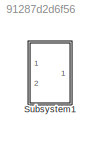
MODEL slx_91287d2d6f56
KIND model
CONFIG AbsTol = auto
CONFIG EnableMultiTasking = off
CONFIG FixedStep = auto
CONFIG MaxStep = auto
CONFIG MinStep = auto
CONFIG RelTol = 1e-3
CONFIG SampleTimeConstraint = Unconstrained
CONFIG Solver = VariableStepAuto
CONFIG SolverName = VariableStepAuto
CONFIG StartTime = 0.0
CONFIG StopTime = 10.0
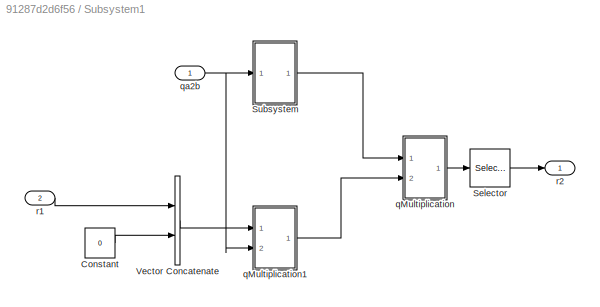
BLOCK [SubSystem] Subsystem1
  Ports = [2, 1]
  RequestExecContextInheritance = off
BLOCK [Constant] Subsystem1/Constant
  Value = 0
BLOCK [Selector] Subsystem1/Selector
  IndexOptions = Index vector (dialog)
  Indices = [1:3]
  InputPortWidth = 4
  OutputSizes = 1
  Ports = [1, 1]
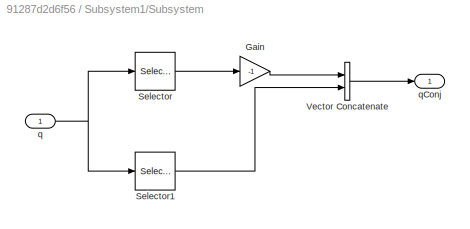
BLOCK [SubSystem] Subsystem1/Subsystem
  Ports = [1, 1]
  RequestExecContextInheritance = off
BLOCK [Gain] Subsystem1/Subsystem/Gain
  Gain = -1
  OutDataTypeStr = Inherit: Inherit via internal rule
  ParamDataTypeStr = Inherit: Inherit via internal rule
  SaturateOnIntegerOverflow = off
BLOCK [Selector] Subsystem1/Subsystem/Selector
  IndexOptions = Index vector (dialog)
  Indices = [1:3]
  InputPortWidth = 4
  OutputSizes = 1
  Ports = [1, 1]
BLOCK [Selector] Subsystem1/Subsystem/Selector1
  IndexOptions = Index vector (dialog)
  Indices = 4
  InputPortWidth = 4
  OutputSizes = 1
  Ports = [1, 1]
BLOCK [Concatenate] Subsystem1/Subsystem/Vector Concatenate
  Ports = [2, 1]
BLOCK [Inport] Subsystem1/Subsystem/q
  IconDisplay = Port number
BLOCK [Outport] Subsystem1/Subsystem/qConj
  IconDisplay = Port number
BLOCK [Concatenate] Subsystem1/Vector Concatenate
  Ports = [2, 1]
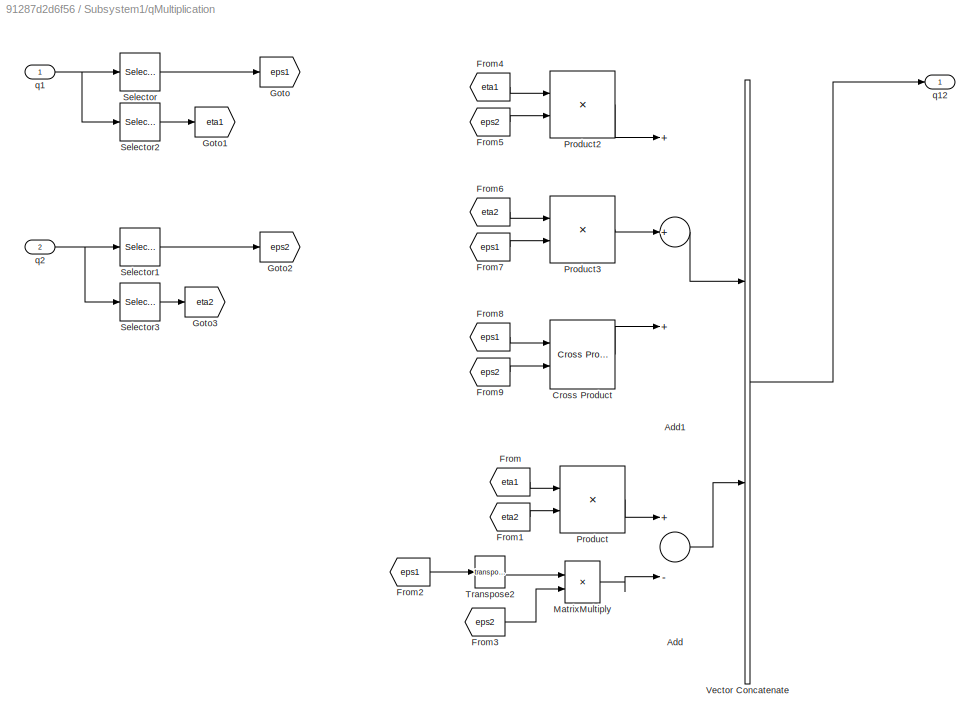
BLOCK [SubSystem] Subsystem1/qMultiplication
  Ports = [2, 1]
  RequestExecContextInheritance = off
BLOCK [Sum] Subsystem1/qMultiplication/Add
  InputSameDT = off
  Inputs = +-
  OutDataTypeStr = Inherit: Inherit via internal rule
  Ports = [2, 1]
  SaturateOnIntegerOverflow = off
BLOCK [Sum] Subsystem1/qMultiplication/Add1
  InputSameDT = off
  Inputs = +++
  OutDataTypeStr = Inherit: Inherit via internal rule
  Ports = [3, 1]
  SaturateOnIntegerOverflow = off
BLOCK [Reference] Subsystem1/qMultiplication/Cross Product  REF=vrlib/Utilities/Cross Product
  Ports = [2, 1]
  SourceBlock = vrlib/Utilities/Cross Product
  SourceProductBaseCode = VR
  SourceProductName = Simulink 3D Animation
  SourceType = Cross Product
BLOCK [From] Subsystem1/qMultiplication/From
  GotoTag = eta1
BLOCK [From] Subsystem1/qMultiplication/From1
  GotoTag = eta2
BLOCK [From] Subsystem1/qMultiplication/From2
  GotoTag = eps1
BLOCK [From] Subsystem1/qMultiplication/From3
  GotoTag = eps2
BLOCK [From] Subsystem1/qMultiplication/From4
  GotoTag = eta1
BLOCK [From] Subsystem1/qMultiplication/From5
  GotoTag = eps2
BLOCK [From] Subsystem1/qMultiplication/From6
  GotoTag = eta2
BLOCK [From] Subsystem1/qMultiplication/From7
  GotoTag = eps1
BLOCK [From] Subsystem1/qMultiplication/From8
  GotoTag = eps1
BLOCK [From] Subsystem1/qMultiplication/From9
  GotoTag = eps2
BLOCK [Goto] Subsystem1/qMultiplication/Goto
  GotoTag = eps1
BLOCK [Goto] Subsystem1/qMultiplication/Goto1
  GotoTag = eta1
BLOCK [Goto] Subsystem1/qMultiplication/Goto2
  GotoTag = eps2
BLOCK [Goto] Subsystem1/qMultiplication/Goto3
  GotoTag = eta2
BLOCK [Product] Subsystem1/qMultiplication/MatrixMultiply
  InputSameDT = off
  Multiplication = Matrix(*)
  OutDataTypeStr = Inherit: Inherit via internal rule
  Ports = [2, 1]
  RndMeth = Floor
  SaturateOnIntegerOverflow = off
BLOCK [Product] Subsystem1/qMultiplication/Product
  InputSameDT = off
  OutDataTypeStr = Inherit: Inherit via internal rule
  Ports = [2, 1]
  RndMeth = Floor
  SaturateOnIntegerOverflow = off
BLOCK [Product] Subsystem1/qMultiplication/Product2
  InputSameDT = off
  OutDataTypeStr = Inherit: Inherit via internal rule
  Ports = [2, 1]
  RndMeth = Floor
  SaturateOnIntegerOverflow = off
BLOCK [Product] Subsystem1/qMultiplication/Product3
  InputSameDT = off
  OutDataTypeStr = Inherit: Inherit via internal rule
  Ports = [2, 1]
  RndMeth = Floor
  SaturateOnIntegerOverflow = off
BLOCK [Selector] Subsystem1/qMultiplication/Selector
  IndexOptions = Index vector (dialog)
  Indices = [1:3]
  InputPortWidth = 4
  OutputSizes = 1
  Ports = [1, 1]
BLOCK [Selector] Subsystem1/qMultiplication/Selector1
  IndexOptions = Index vector (dialog)
  Indices = [1:3]
  InputPortWidth = 4
  OutputSizes = 1
  Ports = [1, 1]
BLOCK [Selector] Subsystem1/qMultiplication/Selector2
  IndexOptions = Index vector (dialog)
  Indices = 4
  InputPortWidth = 4
  OutputSizes = 1
  Ports = [1, 1]
BLOCK [Selector] Subsystem1/qMultiplication/Selector3
  IndexOptions = Index vector (dialog)
  Indices = 4
  InputPortWidth = 4
  OutputSizes = 1
  Ports = [1, 1]
BLOCK [Math] Subsystem1/qMultiplication/Transpose2
  Operator = transpose
  Ports = [1, 1]
BLOCK [Concatenate] Subsystem1/qMultiplication/Vector Concatenate
  Ports = [2, 1]
BLOCK [Inport] Subsystem1/qMultiplication/q1
  IconDisplay = Port number
BLOCK [Outport] Subsystem1/qMultiplication/q12
  IconDisplay = Port number
BLOCK [Inport] Subsystem1/qMultiplication/q2
  IconDisplay = Port number
  Port = 2
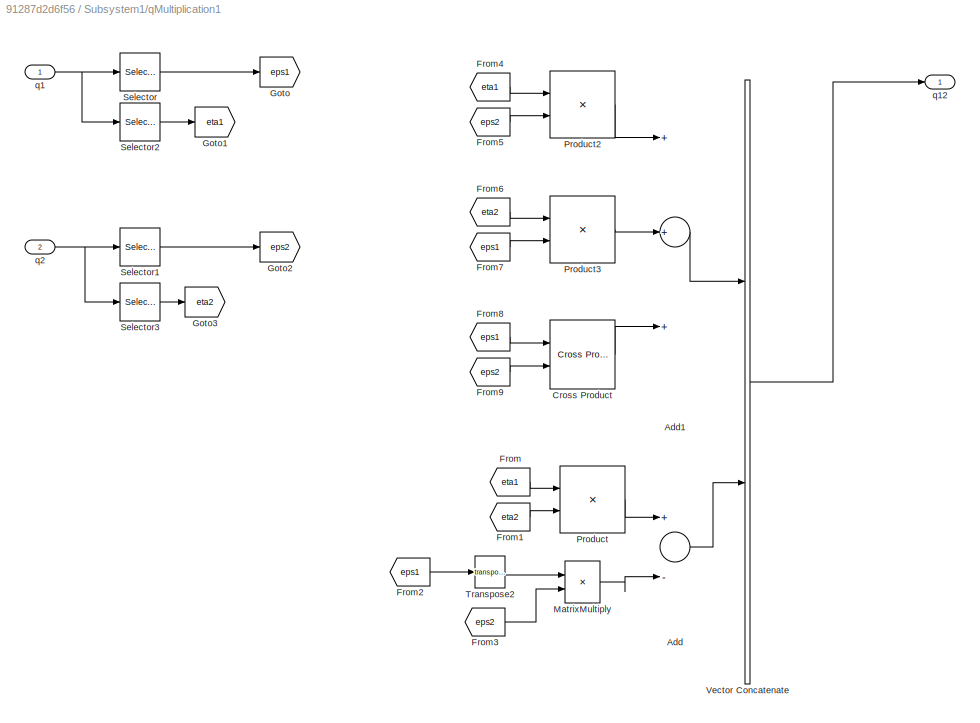
BLOCK [SubSystem] Subsystem1/qMultiplication1
  Ports = [2, 1]
  RequestExecContextInheritance = off
BLOCK [Sum] Subsystem1/qMultiplication1/Add
  InputSameDT = off
  Inputs = +-
  OutDataTypeStr = Inherit: Inherit via internal rule
  Ports = [2, 1]
  SaturateOnIntegerOverflow = off
BLOCK [Sum] Subsystem1/qMultiplication1/Add1
  InputSameDT = off
  Inputs = +++
  OutDataTypeStr = Inherit: Inherit via internal rule
  Ports = [3, 1]
  SaturateOnIntegerOverflow = off
BLOCK [Reference] Subsystem1/qMultiplication1/Cross Product  REF=vrlib/Utilities/Cross Product
  Ports = [2, 1]
  SourceBlock = vrlib/Utilities/Cross Product
  SourceProductBaseCode = VR
  SourceProductName = Simulink 3D Animation
  SourceType = Cross Product
BLOCK [From] Subsystem1/qMultiplication1/From
  GotoTag = eta1
BLOCK [From] Subsystem1/qMultiplication1/From1
  GotoTag = eta2
BLOCK [From] Subsystem1/qMultiplication1/From2
  GotoTag = eps1
BLOCK [From] Subsystem1/qMultiplication1/From3
  GotoTag = eps2
BLOCK [From] Subsystem1/qMultiplication1/From4
  GotoTag = eta1
BLOCK [From] Subsystem1/qMultiplication1/From5
  GotoTag = eps2
BLOCK [From] Subsystem1/qMultiplication1/From6
  GotoTag = eta2
BLOCK [From] Subsystem1/qMultiplication1/From7
  GotoTag = eps1
BLOCK [From] Subsystem1/qMultiplication1/From8
  GotoTag = eps1
BLOCK [From] Subsystem1/qMultiplication1/From9
  GotoTag = eps2
BLOCK [Goto] Subsystem1/qMultiplication1/Goto
  GotoTag = eps1
BLOCK [Goto] Subsystem1/qMultiplication1/Goto1
  GotoTag = eta1
BLOCK [Goto] Subsystem1/qMultiplication1/Goto2
  GotoTag = eps2
BLOCK [Goto] Subsystem1/qMultiplication1/Goto3
  GotoTag = eta2
BLOCK [Product] Subsystem1/qMultiplication1/MatrixMultiply
  InputSameDT = off
  Multiplication = Matrix(*)
  OutDataTypeStr = Inherit: Inherit via internal rule
  Ports = [2, 1]
  RndMeth = Floor
  SaturateOnIntegerOverflow = off
BLOCK [Product] Subsystem1/qMultiplication1/Product
  InputSameDT = off
  OutDataTypeStr = Inherit: Inherit via internal rule
  Ports = [2, 1]
  RndMeth = Floor
  SaturateOnIntegerOverflow = off
BLOCK [Product] Subsystem1/qMultiplication1/Product2
  InputSameDT = off
  OutDataTypeStr = Inherit: Inherit via internal rule
  Ports = [2, 1]
  RndMeth = Floor
  SaturateOnIntegerOverflow = off
BLOCK [Product] Subsystem1/qMultiplication1/Product3
  InputSameDT = off
  OutDataTypeStr = Inherit: Inherit via internal rule
  Ports = [2, 1]
  RndMeth = Floor
  SaturateOnIntegerOverflow = off
BLOCK [Selector] Subsystem1/qMultiplication1/Selector
  IndexOptions = Index vector (dialog)
  Indices = [1:3]
  InputPortWidth = 4
  OutputSizes = 1
  Ports = [1, 1]
BLOCK [Selector] Subsystem1/qMultiplication1/Selector1
  IndexOptions = Index vector (dialog)
  Indices = [1:3]
  InputPortWidth = 4
  OutputSizes = 1
  Ports = [1, 1]
BLOCK [Selector] Subsystem1/qMultiplication1/Selector2
  IndexOptions = Index vector (dialog)
  Indices = 4
  InputPortWidth = 4
  OutputSizes = 1
  Ports = [1, 1]
BLOCK [Selector] Subsystem1/qMultiplication1/Selector3
  IndexOptions = Index vector (dialog)
  Indices = 4
  InputPortWidth = 4
  OutputSizes = 1
  Ports = [1, 1]
BLOCK [Math] Subsystem1/qMultiplication1/Transpose2
  Operator = transpose
  Ports = [1, 1]
BLOCK [Concatenate] Subsystem1/qMultiplication1/Vector Concatenate
  Ports = [2, 1]
BLOCK [Inport] Subsystem1/qMultiplication1/q1
  IconDisplay = Port number
BLOCK [Outport] Subsystem1/qMultiplication1/q12
  IconDisplay = Port number
BLOCK [Inport] Subsystem1/qMultiplication1/q2
  IconDisplay = Port number
  Port = 2
BLOCK [Inport] Subsystem1/qa2b
  IconDisplay = Port number
BLOCK [Inport] Subsystem1/r1
  IconDisplay = Port number
  Port = 2
BLOCK [Outport] Subsystem1/r2
  IconDisplay = Port number
LINE Subsystem1/Constant:1 -> Subsystem1/Vector Concatenate:2
LINE Subsystem1/Selector:1 -> Subsystem1/r2:1
LINE Subsystem1/Subsystem/Gain:1 -> Subsystem1/Subsystem/Vector Concatenate:1
LINE Subsystem1/Subsystem/Selector1:1 -> Subsystem1/Subsystem/Vector Concatenate:2
LINE Subsystem1/Subsystem/Selector:1 -> Subsystem1/Subsystem/Gain:1
LINE Subsystem1/Subsystem/Vector Concatenate:1 -> Subsystem1/Subsystem/qConj:1
NET Subsystem1/Subsystem/q:1 -> Subsystem1/Subsystem/Selector1:1, Subsystem1/Subsystem/Selector:1
LINE Subsystem1/Subsystem:1 -> Subsystem1/qMultiplication:1
LINE Subsystem1/Vector Concatenate:1 -> Subsystem1/qMultiplication1:1
LINE Subsystem1/qMultiplication/Add1:1 -> Subsystem1/qMultiplication/Vector Concatenate:1
LINE Subsystem1/qMultiplication/Add:1 -> Subsystem1/qMultiplication/Vector Concatenate:2
LINE Subsystem1/qMultiplication/Cross Product:1 -> Subsystem1/qMultiplication/Add1:3
LINE Subsystem1/qMultiplication/From1:1 -> Subsystem1/qMultiplication/Product:2
LINE Subsystem1/qMultiplication/From2:1 -> Subsystem1/qMultiplication/Transpose2:1
LINE Subsystem1/qMultiplication/From3:1 -> Subsystem1/qMultiplication/MatrixMultiply:2
LINE Subsystem1/qMultiplication/From4:1 -> Subsystem1/qMultiplication/Product2:1
LINE Subsystem1/qMultiplication/From5:1 -> Subsystem1/qMultiplication/Product2:2
LINE Subsystem1/qMultiplication/From6:1 -> Subsystem1/qMultiplication/Product3:1
LINE Subsystem1/qMultiplication/From7:1 -> Subsystem1/qMultiplication/Product3:2
LINE Subsystem1/qMultiplication/From8:1 -> Subsystem1/qMultiplication/Cross Product:1
LINE Subsystem1/qMultiplication/From9:1 -> Subsystem1/qMultiplication/Cross Product:2
LINE Subsystem1/qMultiplication/From:1 -> Subsystem1/qMultiplication/Product:1
LINE Subsystem1/qMultiplication/MatrixMultiply:1 -> Subsystem1/qMultiplication/Add:2
LINE Subsystem1/qMultiplication/Product2:1 -> Subsystem1/qMultiplication/Add1:1
LINE Subsystem1/qMultiplication/Product3:1 -> Subsystem1/qMultiplication/Add1:2
LINE Subsystem1/qMultiplication/Product:1 -> Subsystem1/qMultiplication/Add:1
LINE Subsystem1/qMultiplication/Selector1:1 -> Subsystem1/qMultiplication/Goto2:1
LINE Subsystem1/qMultiplication/Selector2:1 -> Subsystem1/qMultiplication/Goto1:1
LINE Subsystem1/qMultiplication/Selector3:1 -> Subsystem1/qMultiplication/Goto3:1
LINE Subsystem1/qMultiplication/Selector:1 -> Subsystem1/qMultiplication/Goto:1
LINE Subsystem1/qMultiplication/Transpose2:1 -> Subsystem1/qMultiplication/MatrixMultiply:1
LINE Subsystem1/qMultiplication/Vector Concatenate:1 -> Subsystem1/qMultiplication/q12:1
NET Subsystem1/qMultiplication/q1:1 -> Subsystem1/qMultiplication/Selector2:1, Subsystem1/qMultiplication/Selector:1
NET Subsystem1/qMultiplication/q2:1 -> Subsystem1/qMultiplication/Selector1:1, Subsystem1/qMultiplication/Selector3:1
LINE Subsystem1/qMultiplication1/Add1:1 -> Subsystem1/qMultiplication1/Vector Concatenate:1
LINE Subsystem1/qMultiplication1/Add:1 -> Subsystem1/qMultiplication1/Vector Concatenate:2
LINE Subsystem1/qMultiplication1/Cross Product:1 -> Subsystem1/qMultiplication1/Add1:3
LINE Subsystem1/qMultiplication1/From1:1 -> Subsystem1/qMultiplication1/Product:2
LINE Subsystem1/qMultiplication1/From2:1 -> Subsystem1/qMultiplication1/Transpose2:1
LINE Subsystem1/qMultiplication1/From3:1 -> Subsystem1/qMultiplication1/MatrixMultiply:2
LINE Subsystem1/qMultiplication1/From4:1 -> Subsystem1/qMultiplication1/Product2:1
LINE Subsystem1/qMultiplication1/From5:1 -> Subsystem1/qMultiplication1/Product2:2
LINE Subsystem1/qMultiplication1/From6:1 -> Subsystem1/qMultiplication1/Product3:1
LINE Subsystem1/qMultiplication1/From7:1 -> Subsystem1/qMultiplication1/Product3:2
LINE Subsystem1/qMultiplication1/From8:1 -> Subsystem1/qMultiplication1/Cross Product:1
LINE Subsystem1/qMultiplication1/From9:1 -> Subsystem1/qMultiplication1/Cross Product:2
LINE Subsystem1/qMultiplication1/From:1 -> Subsystem1/qMultiplication1/Product:1
LINE Subsystem1/qMultiplication1/MatrixMultiply:1 -> Subsystem1/qMultiplication1/Add:2
LINE Subsystem1/qMultiplication1/Product2:1 -> Subsystem1/qMultiplication1/Add1:1
LINE Subsystem1/qMultiplication1/Product3:1 -> Subsystem1/qMultiplication1/Add1:2
LINE Subsystem1/qMultiplication1/Product:1 -> Subsystem1/qMultiplication1/Add:1
LINE Subsystem1/qMultiplication1/Selector1:1 -> Subsystem1/qMultiplication1/Goto2:1
LINE Subsystem1/qMultiplication1/Selector2:1 -> Subsystem1/qMultiplication1/Goto1:1
LINE Subsystem1/qMultiplication1/Selector3:1 -> Subsystem1/qMultiplication1/Goto3:1
LINE Subsystem1/qMultiplication1/Selector:1 -> Subsystem1/qMultiplication1/Goto:1
LINE Subsystem1/qMultiplication1/Transpose2:1 -> Subsystem1/qMultiplication1/MatrixMultiply:1
LINE Subsystem1/qMultiplication1/Vector Concatenate:1 -> Subsystem1/qMultiplication1/q12:1
NET Subsystem1/qMultiplication1/q1:1 -> Subsystem1/qMultiplication1/Selector2:1, Subsystem1/qMultiplication1/Selector:1
NET Subsystem1/qMultiplication1/q2:1 -> Subsystem1/qMultiplication1/Selector1:1, Subsystem1/qMultiplication1/Selector3:1
LINE Subsystem1/qMultiplication1:1 -> Subsystem1/qMultiplication:2
LINE Subsystem1/qMultiplication:1 -> Subsystem1/Selector:1
NET Subsystem1/qa2b:1 -> Subsystem1/Subsystem:1, Subsystem1/qMultiplication1:2
LINE Subsystem1/r1:1 -> Subsystem1/Vector Concatenate:1
note: NET lines group one-source signal fan-out (src -> all destinations, sorted); 1:1 wires keep LINE
